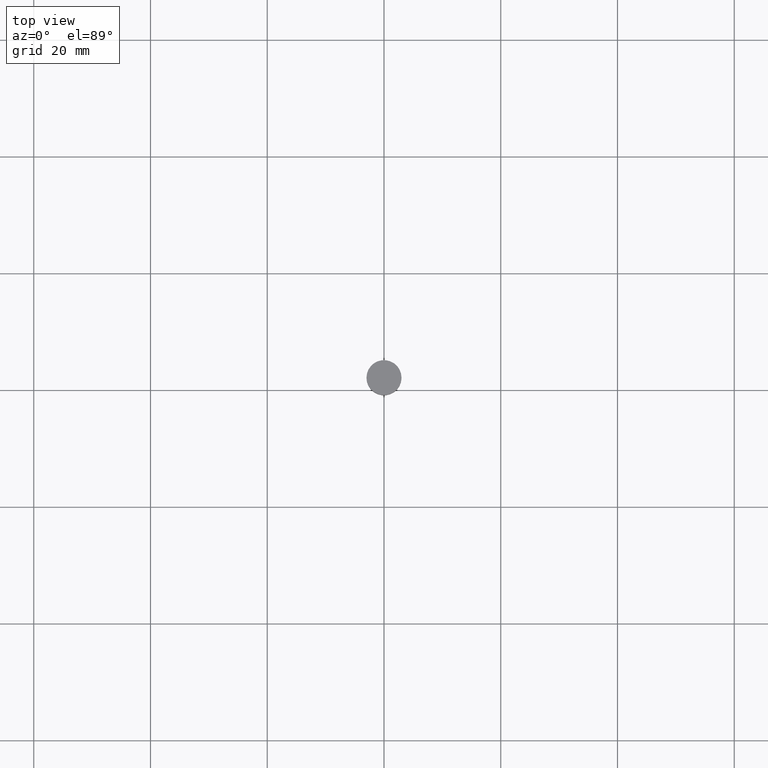
[diagram: clean part render]
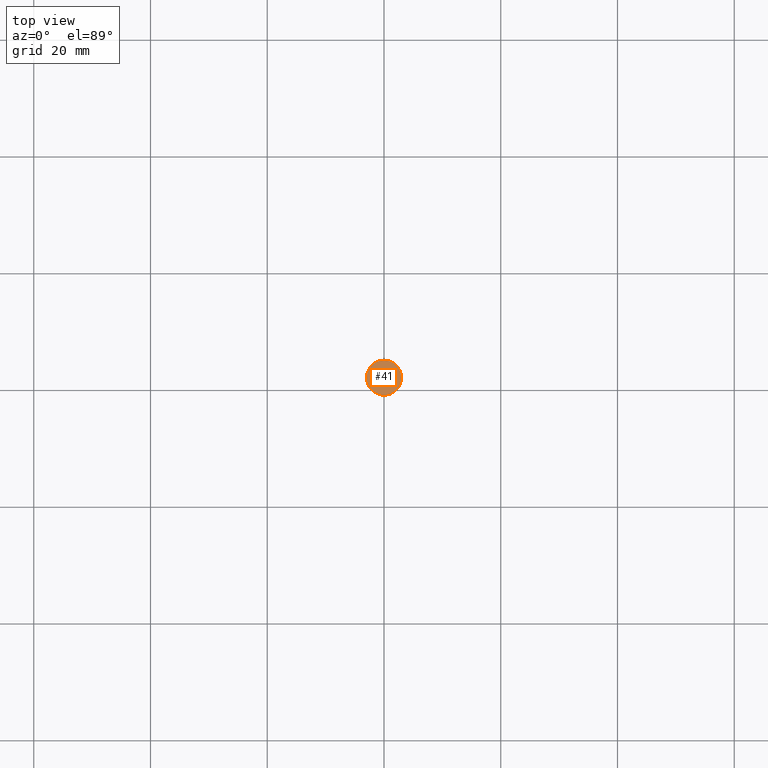
[diagram: same view with one face highlighted and labeled with its STEP entity id]
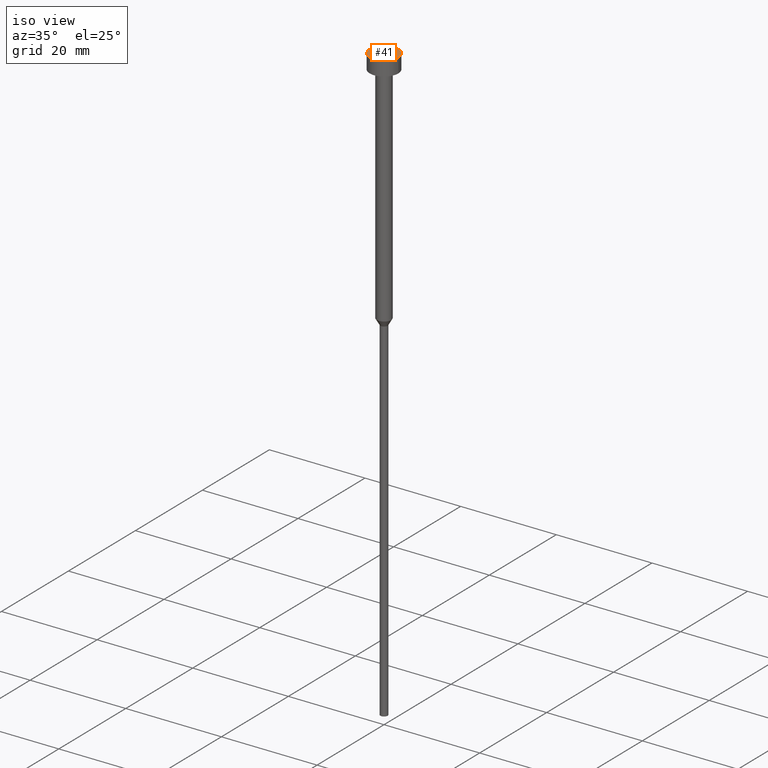
[diagram: same view with one face highlighted and labeled with its STEP entity id]
A machine part, top view. The second image highlights one B-rep face of the part: STEP entity #41.
A second angle (iso view) of the same face is appended — the face is thin or edge-on in the first view.
In plain terms, the highlighted planar face has unit normal (0, -0, 1).
Its self-contained STEP definition (entity closure, byte-faithful):
#6 = DIRECTION ( 'NONE',  ( 1.000000000000000000, 0.000000000000000000, 0.000000000000000000 ) ) ;
#34 = EDGE_CURVE ( 'NONE', #55, #66, #180, .T. ) ;
#41 = ADVANCED_FACE ( 'NONE', ( #201 ), #280, .T. ) ;
#55 = VERTEX_POINT ( 'NONE', #79 ) ;
#66 = VERTEX_POINT ( 'NONE', #103 ) ;
#77 = AXIS2_PLACEMENT_3D ( 'NONE', #129, #136, #272 ) ;
#79 = CARTESIAN_POINT ( 'NONE',  ( -3.000000000000000000, 3.673940397442059868E-16, -3.673940397442059868E-16 ) ) ;
#85 = ORIENTED_EDGE ( 'NONE', *, *, #34, .T. ) ;
#103 = CARTESIAN_POINT ( 'NONE',  ( 3.000000000000000000, 0.000000000000000000, -3.673940397442059868E-16 ) ) ;
#129 = CARTESIAN_POINT ( 'NONE',  ( 0.000000000000000000, 0.000000000000000000, -3.673940397442059868E-16 ) ) ;
#136 = DIRECTION ( 'NONE',  ( -0.000000000000000000, -0.000000000000000000, 1.000000000000000000 ) ) ;
#137 = AXIS2_PLACEMENT_3D ( 'NONE', #203, #309, #148 ) ;
#148 = DIRECTION ( 'NONE',  ( 1.000000000000000000, 0.000000000000000000, 0.000000000000000000 ) ) ;
#180 = CIRCLE ( 'NONE', #237, 3.000000000000000000 ) ;
#200 = CARTESIAN_POINT ( 'NONE',  ( 0.000000000000000000, 0.000000000000000000, -3.673940397442059868E-16 ) ) ;
#201 = FACE_OUTER_BOUND ( 'NONE', #227, .T. ) ;
#203 = CARTESIAN_POINT ( 'NONE',  ( 0.000000000000000000, 0.000000000000000000, -1.836970198721029934E-16 ) ) ;
#227 = EDGE_LOOP ( 'NONE', ( #298, #85 ) ) ;
#229 = EDGE_CURVE ( 'NONE', #66, #55, #230, .T. ) ;
#230 = CIRCLE ( 'NONE', #77, 3.000000000000000000 ) ;
#237 = AXIS2_PLACEMENT_3D ( 'NONE', #200, #308, #6 ) ;
#272 = DIRECTION ( 'NONE',  ( 1.000000000000000000, 0.000000000000000000, 0.000000000000000000 ) ) ;
#280 = PLANE ( 'NONE',  #137 ) ;
#298 = ORIENTED_EDGE ( 'NONE', *, *, #229, .T. ) ;
#308 = DIRECTION ( 'NONE',  ( -0.000000000000000000, -0.000000000000000000, 1.000000000000000000 ) ) ;
#309 = DIRECTION ( 'NONE',  ( 0.000000000000000000, -0.000000000000000000, 1.000000000000000000 ) ) ;